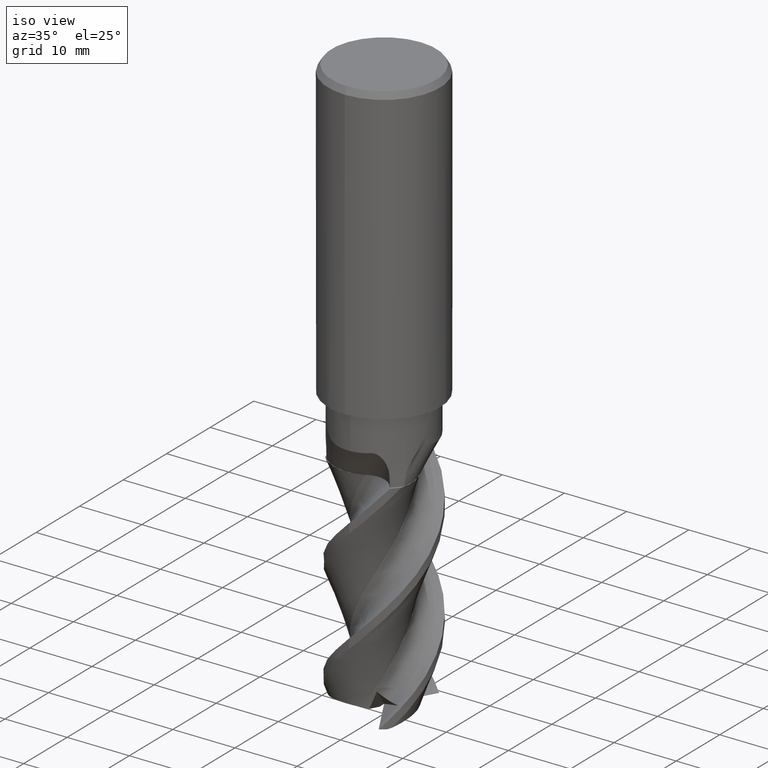
[diagram: clean part render]
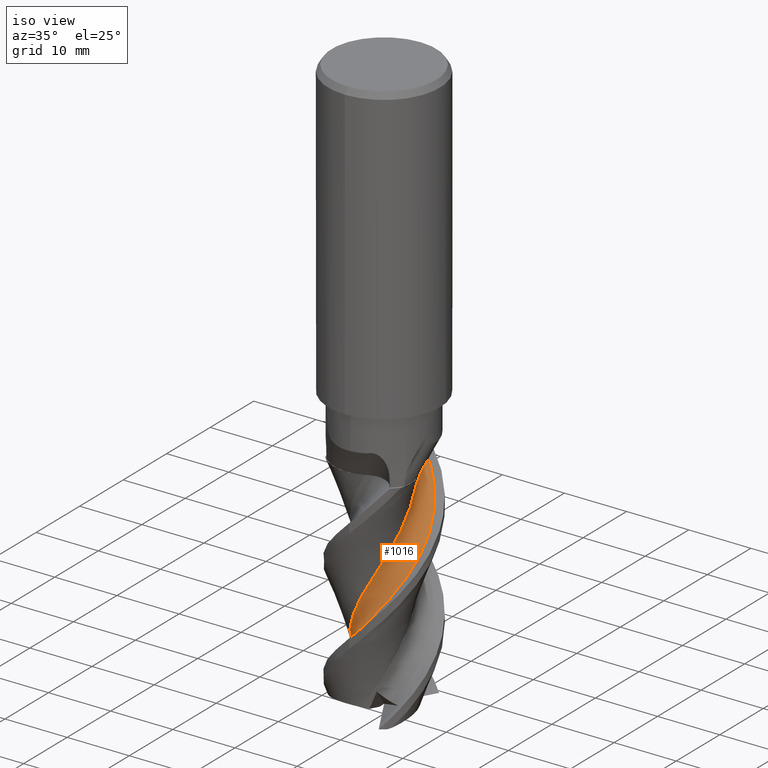
[diagram: same view with one face highlighted and labeled with its STEP entity id]
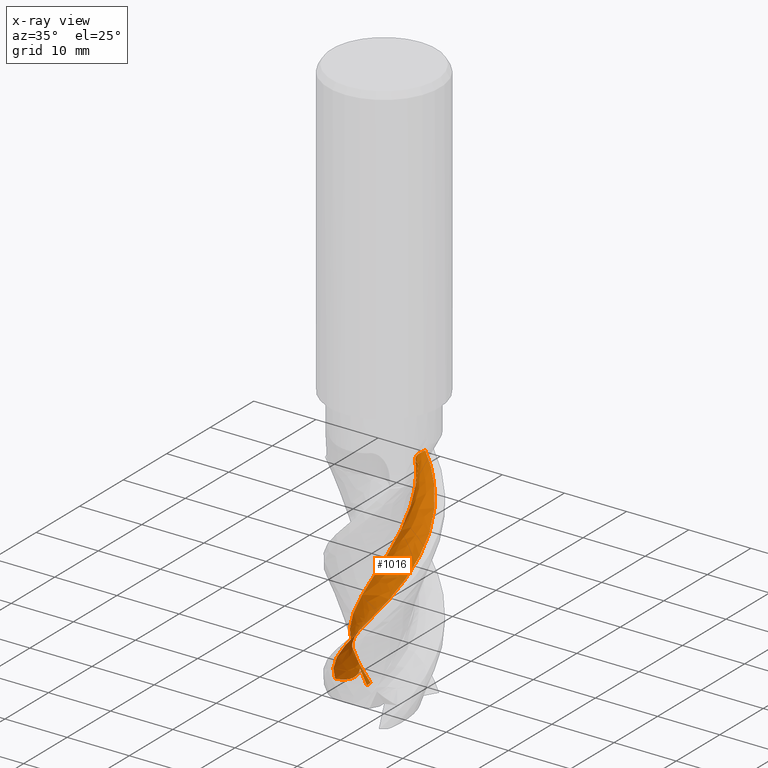
[diagram: x-ray of the same camera — body ghosted, the highlighted face saturated]
A machine part, iso view. The second image highlights one B-rep face of the part: STEP entity #1016.
The next image is the same camera in x-ray: the body ghosted, the highlighted face saturated — about 0% of this face is hidden behind the body in this view.
In plain terms, the highlighted face is a freeform B-spline surface patch.
Its self-contained STEP definition (entity closure, byte-faithful):
#510=VERTEX_POINT('',#1444);
#662=VERTEX_POINT('',#1611);
#722=EDGE_CURVE('',#1364,#1028,#1680,.T.);
#864=EDGE_CURVE('',#662,#510,#1833,.T.);
#946=EDGE_CURVE('',#662,#1020,#1920,.T.);
#1016=ADVANCED_FACE('',(#1997),#1998,.T.);
#1018=EDGE_CURVE('',#1326,#510,#2000,.T.);
#1020=VERTEX_POINT('',#2002);
#1028=VERTEX_POINT('',#2011);
#1192=EDGE_CURVE('',#1028,#1326,#2183,.T.);
#1272=EDGE_CURVE('',#1020,#1364,#2272,.T.);
#1326=VERTEX_POINT('',#2334);
#1364=VERTEX_POINT('',#2376);
#1444=CARTESIAN_POINT('',(2.22355793593202,6.3147285805352,-58.0));
#1611=CARTESIAN_POINT('',(-6.28989335327701,-2.29339340197908,-90.1830418899599));
#1680=B_SPLINE_CURVE_WITH_KNOTS('',3,(#5207,#5208,#5209,#5210,#5211,#5212,#5213,#5214),.UNSPECIFIED.,.F.,.F.,(4,2,2,4),(0.0,1.60264112945097,2.56419841396206,3.494811114331),.UNSPECIFIED.);
#1833=B_SPLINE_CURVE_WITH_KNOTS('',3,(#5941,#5942,#5943,#5944,#5945,#5946,#5947,#5948,#5949,#5950,#5951,#5952,#5953,#5954,#5955,#5956,#5957,#5958,#5959,#5960,#5961,#5962,#5963,#5964,#5965,#5966,#5967,#5968,#5969,#5970,#5971,#5972,#5973,#5974,#5975,#5976,#5977,#5978,#5979,#5980,#5981,#5982,#5983,#5984,#5985,#5986,#5987,#5988,#5989,#5990,#5991,#5992,#5993,#5994,#5995,#5996),.UNSPECIFIED.,.F.,.F.,(4,1,1,2,1,2,1,2,1,1,1,2,1,2,1,2,1,2,1,2,1,2,1,2,1,2,1,2,1,2,1,2,1,2,1,2,1,4),(0.0,1.05208028823285,1.57812043234927,2.10416057646569,3.15624086469854,4.20832115293138,6.31248172939707,8.41664230586276,9.46872259409561,10.5208028823285,11.5728831705613,12.6249634587941,14.7291240352598,16.8332846117255,18.9374451881912,21.0416057646569,23.1457663411226,25.2499269175883,27.354087494054,29.4582480705197,31.5624086469854,33.666569223451,35.7707297999167,37.8748903763824,39.9790509528481,42.0832115293138,44.1873721057795,46.2915326822452,48.3956932587109,50.4998538351766,52.6040144116423,54.7081749881079,56.8123355645736,58.9164961410393,61.020656717505,63.1248172939707,65.2289778704364,67.3331384469021),.UNSPECIFIED.);
#1920=B_SPLINE_CURVE_WITH_KNOTS('',3,(#6532,#6533,#6534,#6535,#6536,#6537,#6538,#6539,#6540,#6541,#6542,#6543),.UNSPECIFIED.,.F.,.F.,(4,2,2,2,2,4),(0.0,1.63922608220236,2.74618993997065,3.5703793079358,4.33404168362256,5.10745570666336),.UNSPECIFIED.);
#1997=FACE_OUTER_BOUND('',#6774,.T.);
#1998=B_SPLINE_SURFACE_WITH_KNOTS('',3,3,((#6775,#6776,#6777,#6778,#6779,#6780,#6781,#6782,#6783,#6784,#6785,#6786,#6787,#6788,#6789,#6790,#6791,#6792,#6793,#6794,#6795,#6796,#6797,#6798,#6799,#6800,#6801,#6802,#6803,#6804,#6805,#6806,#6807,#6808,#6809,#6810,#6811,#6812,#6813,#6814,#6815,#6816,#6817,#6818,#6819,#6820,#6821,#6822,#6823,#6824,#6825,#6826,#6827,#6828,#6829,#6830),(#6831,#6832,#6833,#6834,#6835,#6836,#6837,#6838,#6839,#6840,#6841,#6842,#6843,#6844,#6845,#6846,#6847,#6848,#6849,#6850,#6851,#6852,#6853,#6854,#6855,#6856,#6857,#6858,#6859,#6860,#6861,#6862,#6863,#6864,#6865,#6866,#6867,#6868,#6869,#6870,#6871,#6872,#6873,#6874,#6875,#6876,#6877,#6878,#6879,#6880,#6881,#6882,#6883,#6884,#6885,#6886),(#6887,#6888,#6889,#6890,#6891,#6892,#6893,#6894,#6895,#6896,#6897,#6898,#6899,#6900,#6901,#6902,#6903,#6904,#6905,#6906,#6907,#6908,#6909,#6910,#6911,#6912,#6913,#6914,#6915,#6916,#6917,#6918,#6919,#6920,#6921,#6922,#6923,#6924,#6925,#6926,#6927,#6928,#6929,#6930,#6931,#6932,#6933,#6934,#6935,#6936,#6937,#6938,#6939,#6940,#6941,#6942),(#6943,#6944,#6945,#6946,#6947,#6948,#6949,#6950,#6951,#6952,#6953,#6954,#6955,#6956,#6957,#6958,#6959,#6960,#6961,#6962,#6963,#6964,#6965,#6966,#6967,#6968,#6969,#6970,#6971,#6972,#6973,#6974,#6975,#6976,#6977,#6978,#6979,#6980,#6981,#6982,#6983,#6984,#6985,#6986,#6987,#6988,#6989,#6990,#6991,#6992,#6993,#6994,#6995,#6996,#6997,#6998),(#6999,#7000,#7001,#7002,#7003,#7004,#7005,#7006,#7007,#7008,#7009,#7010,#7011,#7012,#7013,#7014,#7015,#7016,#7017,#7018,#7019,#7020,#7021,#7022,#7023,#7024,#7025,#7026,#7027,#7028,#7029,#7030,#7031,#7032,#7033,#7034,#7035,#7036,#7037,#7038,#7039,#7040,#7041,#7042,#7043,#7044,#7045,#7046,#7047,#7048,#7049,#7050,#7051,#7052,#7053,#7054),(#7055,#7056,#7057,#7058,#7059,#7060,#7061,#7062,#7063,#7064,#7065,#7066,#7067,#7068,#7069,#7070,#7071,#7072,#7073,#7074,#7075,#7076,#7077,#7078,#7079,#7080,#7081,#7082,#7083,#7084,#7085,#7086,#7087,#7088,#7089,#7090,#7091,#7092,#7093,#7094,#7095,#7096,#7097,#7098,#7099,#7100,#7101,#7102,#7103,#7104,#7105,#7106,#7107,#7108,#7109,#7110),(#7111,#7112,#7113,#7114,#7115,#7116,#7117,#7118,#7119,#7120,#7121,#7122,#7123,#7124,#7125,#7126,#7127,#7128,#7129,#7130,#7131,#7132,#7133,#7134,#7135,#7136,#7137,#7138,#7139,#7140,#7141,#7142,#7143,#7144,#7145,#7146,#7147,#7148,#7149,#7150,#7151,#7152,#7153,#7154,#7155,#7156,#7157,#7158,#7159,#7160,#7161,#7162,#7163,#7164,#7165,#7166)),.UNSPECIFIED.,.F.,.F.,.F.,(4,1,1,1,4),(4,1,1,2,1,2,1,2,1,1,1,2,1,2,1,2,1,2,1,2,1,2,1,2,1,2,1,2,1,2,1,2,1,2,1,2,1,4),(5.45451885754599E-016,0.362155819775226,0.724311639550452,1.08646745932568,1.4486232791009),(0.0,1.05208028823285,1.57812043234927,2.10416057646569,3.15624086469854,4.20832115293138,6.31248172939707,8.41664230586276,9.46872259409561,10.5208028823285,11.5728831705613,12.6249634587941,14.7291240352598,16.8332846117255,18.9374451881912,21.0416057646569,23.1457663411226,25.2499269175883,27.354087494054,29.4582480705197,31.5624086469854,33.666569223451,35.7707297999167,37.8748903763824,39.9790509528481,42.0832115293138,44.1873721057795,46.2915326822452,48.3956932587109,50.4998538351766,52.6040144116423,54.7081749881079,56.8123355645736,58.9164961410393,61.020656717505,63.1248172939707,65.2289778704364,67.3331384469021),.UNSPECIFIED.);
#2000=B_SPLINE_CURVE_WITH_KNOTS('',3,(#7169,#7170,#7171,#7172,#7173,#7174,#7175,#7176,#7177,#7178),.UNSPECIFIED.,.F.,.F.,(4,2,2,2,4),(0.0,1.27130456905452,2.54253589378067,3.63435170321796,4.7261446115936),.UNSPECIFIED.);
#2002=CARTESIAN_POINT('',(-4.27892094822931,0.573476657413636,-89.2613661835514));
#2011=CARTESIAN_POINT('',(-3.84685358908376,2.37287257547331,-91.8859076220456));
#2183=B_SPLINE_CURVE_WITH_KNOTS('',3,(#8182,#8183,#8184,#8185,#8186,#8187,#8188,#8189,#8190,#8191,#8192,#8193,#8194,#8195,#8196,#8197,#8198,#8199,#8200,#8201,#8202,#8203,#8204,#8205,#8206,#8207,#8208,#8209,#8210,#8211,#8212,#8213,#8214,#8215,#8216,#8217,#8218,#8219,#8220,#8221,#8222,#8223,#8224,#8225,#8226,#8227,#8228,#8229,#8230,#8231,#8232,#8233,#8234),.UNSPECIFIED.,.F.,.F.,(4,1,2,1,2,1,2,1,2,1,2,1,2,1,2,1,2,1,2,1,2,1,2,1,2,1,2,1,2,1,2,1,2,1,4),(0.0,1.05208028823285,2.10416057646569,3.15624086469854,4.20832115293138,6.31248172939707,8.41664230586276,10.5208028823285,12.6249634587941,14.7291240352598,16.8332846117255,18.9374451881912,21.0416057646569,23.1457663411226,25.2499269175883,27.354087494054,29.4582480705197,31.5624086469854,33.666569223451,35.7707297999167,37.8748903763824,39.9790509528481,42.0832115293138,44.1873721057795,46.2915326822452,48.3956932587109,50.4998538351766,52.6040144116423,54.7081749881079,56.8123355645736,58.9164961410393,61.020656717505,63.1248172939707,65.2289778704364,67.3331384469021),.UNSPECIFIED.);
#2272=B_SPLINE_CURVE_WITH_KNOTS('',3,(#9012,#9013,#9014,#9015,#9016,#9017,#9018,#9019,#9020,#9021,#9022,#9023,#9024,#9025),.UNSPECIFIED.,.F.,.F.,(4,2,2,2,2,2,4),(0.0,1.41616585007749,1.84085643942317,2.2535821801268,6.28710631837659,8.06713960891756,10.0252485545856),.UNSPECIFIED.);
#2334=CARTESIAN_POINT('',(3.87236873520608,2.330720127982,-58.0));
#2376=CARTESIAN_POINT('',(-3.91018268444745,1.61313432059085,-91.9915144910209));
#5207=CARTESIAN_POINT('',(-5.28938370358119,-0.374505337660032,-91.9263345308506));
#5208=CARTESIAN_POINT('',(-4.86987631664627,-0.0502761781570873,-91.991704953761));
#5209=CARTESIAN_POINT('',(-4.52157195879466,0.332685917688254,-92.0274979035513));
#5210=CARTESIAN_POINT('',(-4.12055129785371,0.998883512179404,-92.0321102304524));
#5211=CARTESIAN_POINT('',(-4.00153975507122,1.26716466064107,-92.0220138210744));
#5212=CARTESIAN_POINT('',(-3.85448528541987,1.81880992946687,-91.9737730821675));
#5213=CARTESIAN_POINT('',(-3.82490114446282,2.0969947267938,-91.9369038655388));
#5214=CARTESIAN_POINT('',(-3.84685358919206,2.37287257545753,-91.8859076220178));
#5941=CARTESIAN_POINT('',(2.4086586423331,6.24492391113176,-109.0));
#5942=CARTESIAN_POINT('',(2.37630737481632,6.25952841587887,-108.651072579115));
#5943=CARTESIAN_POINT('',(2.2143571545779,6.32693680486268,-108.127524460477));
#5944=CARTESIAN_POINT('',(1.74902233982469,6.46933910757108,-107.429428629351));
#5945=CARTESIAN_POINT('',(1.42924904301388,6.54418410614278,-107.080456256324));
#5946=CARTESIAN_POINT('',(0.884930414730658,6.64558014179787,-106.55713254818));
#5947=CARTESIAN_POINT('',(0.203440921889663,6.71285186098475,-105.859425673904));
#5948=CARTESIAN_POINT('',(-0.390337190983949,6.68867529174116,-105.161585973117));
#5949=CARTESIAN_POINT('',(-1.22998172512852,6.60519643773367,-104.114596902642));
#5950=CARTESIAN_POINT('',(-2.32084826201455,6.35638932693125,-102.71862421018));
#5951=CARTESIAN_POINT('',(-3.3599079926254,5.82266405836272,-101.322690176022));
#5952=CARTESIAN_POINT('',(-4.10352476669626,5.29832861737617,-100.275884146031));
#5953=CARTESIAN_POINT('',(-4.56471525206936,4.92328591150941,-99.5780260148535));
#5954=CARTESIAN_POINT('',(-5.16199289166042,4.29233478478124,-98.5312100898291));
#5955=CARTESIAN_POINT('',(-5.67175698234674,3.59249222109533,-97.4843401699208));
#5956=CARTESIAN_POINT('',(-5.95387425503102,3.07600018377251,-96.786401149683));
#5957=CARTESIAN_POINT('',(-6.33000305867484,2.26017897694653,-95.7395013984771));
#5958=CARTESIAN_POINT('',(-6.67006314879363,1.14798568027452,-94.3436952715741));
#5959=CARTESIAN_POINT('',(-6.72161955852093,-0.0140925914243089,-92.9478102200316));
#5960=CARTESIAN_POINT('',(-6.61210034900328,-1.20737861078798,-91.5519840884215));
#5961=CARTESIAN_POINT('',(-6.35080123590704,-2.33930319462178,-90.1562051408592));
#5962=CARTESIAN_POINT('',(-5.81536270260323,-3.3708569696423,-88.7603200213329));
#5963=CARTESIAN_POINT('',(-5.12367957621595,-4.35039948485345,-87.3644844988753));
#5964=CARTESIAN_POINT('',(-4.33092329359528,-5.20087660904246,-85.9687002621039));
#5965=CARTESIAN_POINT('',(-3.35122257941284,-5.8266702959898,-84.5728156846214));
#5966=CARTESIAN_POINT('',(-2.26278852085276,-6.329111718129,-83.1769815968081));
#5967=CARTESIAN_POINT('',(-1.15133961765206,-6.66934388295232,-81.7811979629785));
#5968=CARTESIAN_POINT('',(0.00990555342202759,-6.72166333691179,-80.3853131393637));
#5969=CARTESIAN_POINT('',(1.20379402754586,-6.61277538209198,-78.9894788521544));
#5970=CARTESIAN_POINT('',(2.33653353751073,-6.35188115442965,-77.5936951817152));
#5971=CARTESIAN_POINT('',(3.3684476385012,-5.81673492876913,-76.1978105539307));
#5972=CARTESIAN_POINT('',(4.34803255526738,-5.12567186282775,-74.8019764943249));
#5973=CARTESIAN_POINT('',(5.19869206473834,-4.33351973751684,-73.4061928355971));
#5974=CARTESIAN_POINT('',(5.82498136363177,-3.35417104334928,-72.0103080222112));
#5975=CARTESIAN_POINT('',(6.32800762067599,-2.26588690513131,-70.6144738481807));
#5976=CARTESIAN_POINT('',(6.66879683645557,-1.15452630225929,-69.2186902821856));
#5977=CARTESIAN_POINT('',(6.72166587726088,0.00669996322253708,-67.8228055229384));
#5978=CARTESIAN_POINT('',(6.61335151198061,1.20062095856321,-66.4269711661075));
#5979=CARTESIAN_POINT('',(6.35300608376915,2.33346752117525,-65.0311874305366));
#5980=CARTESIAN_POINT('',(5.81837018094502,3.36562088546095,-63.6353027628009));
#5981=CARTESIAN_POINT('',(5.12779900239241,4.34552195790485,-62.239468670901));
#5982=CARTESIAN_POINT('',(4.33605551561435,5.19658425768415,-60.8436850347863));
#5983=CARTESIAN_POINT('',(3.35694909800252,5.82338306365733,-59.447800546078));
#5984=CARTESIAN_POINT('',(2.26884243338146,6.32695173107937,-58.0519668945337));
#5985=CARTESIAN_POINT('',(1.15770209136328,6.66823173059546,-56.6561831843413));
#5986=CARTESIAN_POINT('',(-0.00338251972054238,6.72166969569153,-55.2602966558324));
#5987=CARTESIAN_POINT('',(-1.19735486228095,6.61394313652034,-53.864459898575));
#5988=CARTESIAN_POINT('',(-2.33055804227824,6.35409230993846,-52.4686773391297));
#5989=CARTESIAN_POINT('',(-3.36271535436443,5.82000794471283,-51.0727995826382));
#5990=CARTESIAN_POINT('',(-4.34224667014264,5.13052183789152,-49.6769732124108));
#5991=CARTESIAN_POINT('',(-5.19350612239861,4.33987959228607,-48.2811832277958));
#5992=CARTESIAN_POINT('',(-5.82273853085125,3.35850168140298,-46.885279083924));
#5993=CARTESIAN_POINT('',(-6.32865750359107,2.26485067113282,-45.4894307030924));
#5994=CARTESIAN_POINT('',(-6.66828527967283,1.15262053823479,-44.0936746501432));
#5995=CARTESIAN_POINT('',(-6.72077443906165,0.00893556010537155,-42.6978388415216));
#5996=CARTESIAN_POINT('',(-6.67016703667541,-0.575295329206984,-41.9999324884485));
#6532=CARTESIAN_POINT('',(-6.28989335327701,-2.29339340197907,-90.1830418899599));
#6533=CARTESIAN_POINT('',(-5.83077271909361,-2.02063023202306,-90.2986747457366));
#6534=CARTESIAN_POINT('',(-5.41314953049167,-1.7091689137424,-90.3497486678629));
#6535=CARTESIAN_POINT('',(-4.84224416734199,-1.15255541922655,-90.30782476927));
#6536=CARTESIAN_POINT('',(-4.63373800592171,-0.905455005289958,-90.2550926827754));
#6537=CARTESIAN_POINT('',(-4.36172958721066,-0.451244598035822,-90.0736870455262));
#6538=CARTESIAN_POINT('',(-4.27756577672142,-0.254447415101886,-89.9695090787141));
#6539=CARTESIAN_POINT('',(-4.1972066869137,0.117751994859135,-89.7126346628192));
#6540=CARTESIAN_POINT('',(-4.19697452335599,0.285003757750842,-89.5699644360377));
#6541=CARTESIAN_POINT('',(-4.27066821004876,0.589109111333743,-89.2542808287538));
#6542=CARTESIAN_POINT('',(-4.34410347611005,0.71990406213134,-89.0868144990053));
#6543=CARTESIAN_POINT('',(-4.44462105500136,0.827846148347738,-88.9183036847115));
#6774=EDGE_LOOP('',(#11127,#11128,#11129,#11130,#11131,#11132));
#6775=CARTESIAN_POINT('',(3.91210414332338,2.20410300598852,-109.0));
#6776=CARTESIAN_POINT('',(3.9176808329129,2.23281921013965,-108.651198226776));
#6777=CARTESIAN_POINT('',(3.87869743380195,2.34542804912071,-108.126943824335));
#6778=CARTESIAN_POINT('',(3.70336262431504,2.62299235896373,-107.427774118038));
#6779=CARTESIAN_POINT('',(3.56683813372603,2.79814675815055,-107.07874195647));
#6780=CARTESIAN_POINT('',(3.32045941086917,3.08036640488488,-106.556162769298));
#6781=CARTESIAN_POINT('',(2.98951188844652,3.40385662853436,-105.859781416877));
#6782=CARTESIAN_POINT('',(2.66986091639698,3.64616264870399,-105.162408191925));
#6783=CARTESIAN_POINT('',(2.19839949390143,3.96565387397065,-104.114687546498));
#6784=CARTESIAN_POINT('',(1.52561703055323,4.30873989430494,-102.717842366888));
#6785=CARTESIAN_POINT('',(0.75497251483309,4.47816473405965,-101.321295254061));
#6786=CARTESIAN_POINT('',(0.142002897622095,4.52250987133084,-100.274931304431));
#6787=CARTESIAN_POINT('',(-0.259361980657867,4.52488520407698,-99.5774451189426));
#6788=CARTESIAN_POINT('',(-0.84158568857154,4.45388962343805,-98.5310037152148));
#6789=CARTESIAN_POINT('',(-1.40804525389292,4.3096381330646,-97.4841678729036));
#6790=CARTESIAN_POINT('',(-1.77697721913241,4.16187265125512,-96.7860899327076));
#6791=CARTESIAN_POINT('',(-2.32303877538285,3.89748764674831,-95.73903749983));
#6792=CARTESIAN_POINT('',(-2.97862279212829,3.46573205689747,-94.3434071803266));
#6793=CARTESIAN_POINT('',(-3.50596987851977,2.88353857788947,-92.9472039972634));
#6794=CARTESIAN_POINT('',(-3.96041344157847,2.21390530625817,-91.5514289379836));
#6795=CARTESIAN_POINT('',(-4.31195021400619,1.51305600707443,-90.1559966369849));
#6796=CARTESIAN_POINT('',(-4.47787607272301,0.745936631202697,-88.7597917483929));
#6797=CARTESIAN_POINT('',(-4.53685712873086,-0.0617566729936594,-87.363947732843));
#6798=CARTESIAN_POINT('',(-4.49091261508209,-0.845138746400566,-85.9684768730404));
#6799=CARTESIAN_POINT('',(-4.25098189343525,-1.59261560003021,-84.5722762515982));
#6800=CARTESIAN_POINT('',(-3.89840602648561,-2.32143170181862,-83.1764428455985));
#6801=CARTESIAN_POINT('',(-3.46715128485147,-2.97679277802163,-81.7809763951651));
#6802=CARTESIAN_POINT('',(-2.88577452983669,-3.50423717203244,-80.3847738964392));
#6803=CARTESIAN_POINT('',(-2.21608241821847,-3.95924997062414,-78.9889389922037));
#6804=CARTESIAN_POINT('',(-1.51495870489823,-4.31130778521567,-77.5934722673173));
#6805=CARTESIAN_POINT('',(-0.747776326225385,-4.4775232165998,-76.1972712168149));
#6806=CARTESIAN_POINT('',(0.0596701076636255,-4.53686544139955,-74.8014379846948));
#6807=CARTESIAN_POINT('',(0.842887043564287,-4.49133270283545,-73.4059713545652));
#6808=CARTESIAN_POINT('',(1.59047177519227,-4.25180054549916,-72.0097689449949));
#6809=CARTESIAN_POINT('',(2.31952621178001,-3.89954681811945,-70.6139348629626));
#6810=CARTESIAN_POINT('',(2.97513593560657,-3.46857312470342,-69.2184688774741));
#6811=CARTESIAN_POINT('',(3.50285762538284,-2.88744298768017,-67.8222668716184));
#6812=CARTESIAN_POINT('',(3.95818479325357,-2.21798071783656,-66.4264315174587));
#6813=CARTESIAN_POINT('',(4.31057509216532,-1.51703831923412,-65.03096440546));
#6814=CARTESIAN_POINT('',(4.47716036409898,-0.749951777382806,-63.6347630362591));
#6815=CARTESIAN_POINT('',(4.53689629328112,0.0574485150182931,-62.2389293956788));
#6816=CARTESIAN_POINT('',(4.49174795300425,0.840699259137214,-60.843462609704));
#6817=CARTESIAN_POINT('',(4.25255662480049,1.58844357594952,-59.4472626492345));
#6818=CARTESIAN_POINT('',(3.90062477150182,2.31770374096086,-58.05143300684));
#6819=CARTESIAN_POINT('',(3.46998299420146,2.97347621369663,-56.6559671654424));
#6820=CARTESIAN_POINT('',(2.8891765616734,3.50143836854669,-55.2597519755032));
#6821=CARTESIAN_POINT('',(2.2199367162323,3.95709089525956,-53.8638967848084));
#6822=CARTESIAN_POINT('',(1.51900884730316,4.30987046626463,-52.4684337913786));
#6823=CARTESIAN_POINT('',(0.752168823704514,4.476761435775,-51.0722837184851));
#6824=CARTESIAN_POINT('',(-0.0545606455449004,4.53698212021749,-49.6765147938335));
#6825=CARTESIAN_POINT('',(-0.837448802517368,4.49256176686287,-48.2810179044601));
#6826=CARTESIAN_POINT('',(-1.58741013565347,4.25300677667559,-46.8846706212026));
#6827=CARTESIAN_POINT('',(-2.32011696065469,3.89877413707266,-45.4887015283125));
#6828=CARTESIAN_POINT('',(-2.97538913257701,3.4667979730445,-44.0933765894603));
#6829=CARTESIAN_POINT('',(-3.49613215070301,2.89558473657637,-42.697417636209));
#6830=CARTESIAN_POINT('',(-3.72087495183469,2.56958272578878,-41.9995089409185));
#6831=CARTESIAN_POINT('',(3.56564151834793,2.38905348954776,-109.0));
#6832=CARTESIAN_POINT('',(3.56948222991669,2.41451772310721,-108.651180032716));
#6833=CARTESIAN_POINT('',(3.52483730902663,2.51662091147232,-108.127027900467));
#6834=CARTESIAN_POINT('',(3.33787458288133,2.76746029541946,-107.428013691627));
#6835=CARTESIAN_POINT('',(3.19490188205433,2.92471076476308,-107.078990188611));
#6836=CARTESIAN_POINT('',(2.93910941727702,3.1766109916506,-106.55630319213));
#6837=CARTESIAN_POINT('',(2.59970981527968,3.46146299355283,-105.859729906188));
#6838=CARTESIAN_POINT('',(2.27743983785128,3.66904255460756,-105.162289133762));
#6839=CARTESIAN_POINT('',(1.80518006831044,3.9388184154397,-104.114674422282));
#6840=CARTESIAN_POINT('',(1.13959730961685,4.21628761434979,-102.717955587997));
#6841=CARTESIAN_POINT('',(0.393078962160804,4.32153832735063,-101.321497218578));
#6842=CARTESIAN_POINT('',(-0.194481081964385,4.31919889703355,-100.275069286694));
#6843=CARTESIAN_POINT('',(-0.577148281925571,4.29221337204429,-99.5775292241527));
#6844=CARTESIAN_POINT('',(-1.12660246128019,4.182105222046,-98.5310336008573));
#6845=CARTESIAN_POINT('',(-1.65566067604847,4.00336943789784,-97.4841928253455));
#6846=CARTESIAN_POINT('',(-1.99641473536887,3.83568670192393,-96.7861349966753));
#6847=CARTESIAN_POINT('',(-2.49759989111006,3.54393541596587,-95.7391046733214));
#6848=CARTESIAN_POINT('',(-3.09058830056535,3.08479946044433,-94.3434488945219));
#6849=CARTESIAN_POINT('',(-3.55047425548364,2.49175908489419,-92.9472917808943));
#6850=CARTESIAN_POINT('',(-3.93483489918229,1.82043712367649,-91.5515093216923));
#6851=CARTESIAN_POINT('',(-4.21854191874007,1.12716519670771,-90.1560268229526));
#6852=CARTESIAN_POINT('',(-4.32065576175457,0.384335791397181,-88.7598682558254));
#6853=CARTESIAN_POINT('',(-4.31804927708582,-0.389775238826106,-87.364025443515));
#6854=CARTESIAN_POINT('',(-4.21710261406362,-1.13266049748519,-85.968509236156));
#6855=CARTESIAN_POINT('',(-3.93404405190836,-1.82718582401311,-84.5723543424475));
#6856=CARTESIAN_POINT('',(-3.54492597715964,-2.4961437212151,-83.1765208762858));
#6857=CARTESIAN_POINT('',(-3.08628364989333,-3.08895084347339,-81.7810084613486));
#6858=CARTESIAN_POINT('',(-2.49402092779958,-3.54898050769978,-80.384851993637));
#6859=CARTESIAN_POINT('',(-1.8225993009458,-3.93388181819198,-78.9890171495635));
#6860=CARTESIAN_POINT('',(-1.12902309120101,-4.21806932844703,-77.5935045225053));
#6861=CARTESIAN_POINT('',(-0.386110228474422,-4.32045497344199,-76.1973493734782));
#6862=CARTESIAN_POINT('',(0.38778928589204,-4.31820988150816,-74.8015159007103));
#6863=CARTESIAN_POINT('',(1.13054473362089,-4.21766712943738,-73.4060034887334));
#6864=CARTESIAN_POINT('',(1.82520158344523,-3.93498055839815,-72.0098469367835));
#6865=CARTESIAN_POINT('',(2.49441105815991,-3.54615196068475,-70.6140129750751));
#6866=CARTESIAN_POINT('',(3.08747624041381,-3.08775892015546,-69.2185008674642));
#6867=CARTESIAN_POINT('',(3.54778802763309,-2.49571083493868,-67.8223449407755));
#6868=CARTESIAN_POINT('',(3.93300556559248,-1.82448551864895,-66.4265095866159));
#6869=CARTESIAN_POINT('',(4.21752291465115,-1.13105788817523,-65.0309967219425));
#6870=CARTESIAN_POINT('',(4.32026774243521,-0.388209507185105,-63.6348412163832));
#6871=CARTESIAN_POINT('',(4.31840121221888,0.385674487371414,-62.239007455479));
#6872=CARTESIAN_POINT('',(4.21822222656453,1.12849039887539,-60.8434948555085));
#6873=CARTESIAN_POINT('',(3.93584863650484,1.82332475082499,-59.4473404873073));
#6874=CARTESIAN_POINT('',(3.54731175437771,2.49275421368813,-58.051510363617));
#6875=CARTESIAN_POINT('',(3.08922319736053,3.08599778185736,-56.6559984147567));
#6876=CARTESIAN_POINT('',(2.49746659073764,3.54656146125734,-55.2598308564753));
#6877=CARTESIAN_POINT('',(1.82642915969012,3.93210573450718,-53.863978312907));
#6878=CARTESIAN_POINT('',(1.13298439050311,4.21699713861203,-52.4684690666555));
#6879=CARTESIAN_POINT('',(0.390350608486466,4.32004933899824,-51.0723584079407));
#6880=CARTESIAN_POINT('',(-0.382919354789024,4.31869032297362,-49.6765811809373));
#6881=CARTESIAN_POINT('',(-1.1254333854225,4.21923102841596,-48.2810418012695));
#6882=CARTESIAN_POINT('',(-1.82238437581345,3.93635052824946,-46.8847588031288));
#6883=CARTESIAN_POINT('',(-2.49498993867507,3.54535774187852,-45.4888070368858));
#6884=CARTESIAN_POINT('',(-3.08766937150429,3.08602100860495,-44.093419797805));
#6885=CARTESIAN_POINT('',(-3.54191288948272,2.50401174335066,-42.6974786051065));
#6886=CARTESIAN_POINT('',(-3.73228378979692,2.17701060944793,-41.9995702707877));
#6887=CARTESIAN_POINT('',(2.94051396343669,2.8857064306092,-109.0));
#6888=CARTESIAN_POINT('',(2.93969299301079,2.90530307552372,-108.651144855977));
#6889=CARTESIAN_POINT('',(2.87988159429477,2.98847029183923,-108.127190459589));
#6890=CARTESIAN_POINT('',(2.65988504153848,3.19012382804618,-107.428476899705));
#6891=CARTESIAN_POINT('',(2.49746489422036,3.31393191642365,-107.079470134288));
#6892=CARTESIAN_POINT('',(2.21175066377983,3.50864793662488,-106.556574699377));
#6893=CARTESIAN_POINT('',(1.8413075913764,3.71932864198526,-105.859630308588));
#6894=CARTESIAN_POINT('',(1.50109026596119,3.85842436095317,-105.162058941371));
#6895=CARTESIAN_POINT('',(1.00903786090322,4.0290766625366,-104.114649042399));
#6896=CARTESIAN_POINT('',(0.333836126775147,4.17269688129261,-102.718174463061));
#6897=CARTESIAN_POINT('',(-0.387925351185719,4.14078839589311,-101.321887782337));
#6898=CARTESIAN_POINT('',(-0.941760800601317,4.03579378138368,-100.275336034235));
#6899=CARTESIAN_POINT('',(-1.29778455411987,3.94325193029681,-99.5776918684476));
#6900=CARTESIAN_POINT('',(-1.79602502414857,3.74293655803058,-98.5310913751609));
#6901=CARTESIAN_POINT('',(-2.26291333367261,3.48155342851927,-97.4842410568173));
#6902=CARTESIAN_POINT('',(-2.55460992540073,3.26372888068206,-96.7862221292099));
#6903=CARTESIAN_POINT('',(-2.97607209369881,2.90082820355151,-95.7392345449751));
#6904=CARTESIAN_POINT('',(-3.4539095712458,2.36402936241458,-94.3435295568153));
#6905=CARTESIAN_POINT('',(-3.78286361159194,1.72460716482508,-92.9474614945806));
#6906=CARTESIAN_POINT('',(-4.0276976999523,1.02425755496031,-91.5516647535819));
#6907=CARTESIAN_POINT('',(-4.17299225796047,0.321311879887849,-90.1560852038779));
#6908=CARTESIAN_POINT('',(-4.13861100632726,-0.396300570915144,-88.7600161325152));
#6909=CARTESIAN_POINT('',(-4.00055671145057,-1.12579862446464,-87.3641757420423));
#6910=CARTESIAN_POINT('',(-3.77480019290597,-1.80783367260729,-85.968571759883));
#6911=CARTESIAN_POINT('',(-3.38611832369226,-2.41225699175316,-84.5725053790369));
#6912=CARTESIAN_POINT('',(-2.90201835036021,-2.9748912619785,-83.1766716951533));
#6913=CARTESIAN_POINT('',(-2.36571391617691,-3.4526333847522,-81.7810705110444));
#6914=CARTESIAN_POINT('',(-1.72700826242165,-3.78183825452856,-80.3850029407217));
#6915=CARTESIAN_POINT('',(-1.02646685185994,-4.02717077908237,-78.9891683151224));
#6916=CARTESIAN_POINT('',(-0.323142346512601,-4.1728756866291,-77.5935669593028));
#6917=CARTESIAN_POINT('',(0.394600958918836,-4.13873822561769,-76.1975002904651));
#6918=CARTESIAN_POINT('',(1.12395813945164,-4.00105864539583,-74.8016667446832));
#6919=CARTESIAN_POINT('',(1.80593688279339,-3.77570329159296,-73.4060654072735));
#6920=CARTESIAN_POINT('',(2.41054872537678,-3.38734891131949,-72.0099979584622));
#6921=CARTESIAN_POINT('',(2.97347303057844,-2.90347794899828,-70.6141637747541));
#6922=CARTESIAN_POINT('',(3.45150363954395,-2.36736272131848,-69.2185629602249));
#6923=CARTESIAN_POINT('',(3.78101200990114,-1.72880954966732,-67.8224956294484));
#6924=CARTESIAN_POINT('',(4.02667673179552,-1.02839803688819,-66.4266607857736));
#6925=CARTESIAN_POINT('',(4.1727181650797,-0.325155691065311,-65.0310591294607));
#6926=CARTESIAN_POINT('',(4.13893010067326,0.392589681639308,-63.6349922701677));
#6927=CARTESIAN_POINT('',(4.00160993637677,1.1219982023625,-62.2391584860176));
#6928=CARTESIAN_POINT('',(3.77658688855563,1.80409819735296,-60.8435570646212));
#6929=CARTESIAN_POINT('',(3.38849638171909,2.40893359587611,-59.4474911537434));
#6930=CARTESIAN_POINT('',(2.90486199181465,2.97211742675408,-58.0516597609496));
#6931=CARTESIAN_POINT('',(2.36900217081304,3.45036774244063,-56.6560589384481));
#6932=CARTESIAN_POINT('',(1.73068015643912,3.78016264944069,-55.25998333077));
#6933=CARTESIAN_POINT('',(1.03038802871609,4.02616949735383,-53.8641359838228));
#6934=CARTESIAN_POINT('',(0.327059618893146,4.17256616884524,-52.4685372292844));
#6935=CARTESIAN_POINT('',(-0.390534412960107,4.13910045014979,-51.0725028598502));
#6936=CARTESIAN_POINT('',(-1.11943406052186,4.00235417418623,-49.6767094955444));
#6937=CARTESIAN_POINT('',(-1.80135665430657,3.77805638268278,-48.2810881513402));
#6938=CARTESIAN_POINT('',(-2.40816040623126,3.3891358145629,-46.8849290493799));
#6939=CARTESIAN_POINT('',(-2.97403603611818,2.9026362762388,-45.489011284289));
#6940=CARTESIAN_POINT('',(-3.45156304850941,2.36567732202861,-44.0935031537601));
#6941=CARTESIAN_POINT('',(-3.77677901815273,1.73773994354708,-42.6975966076737));
#6942=CARTESIAN_POINT('',(-3.89878219067881,1.39616051357943,-41.9996888498895));
#6943=CARTESIAN_POINT('',(2.32754756285961,3.91463823774922,-109.0));
#6944=CARTESIAN_POINT('',(2.31706883686409,3.92848144380677,-108.651102547932));
#6945=CARTESIAN_POINT('',(2.22591828489363,3.99314598075029,-108.12738596988));
#6946=CARTESIAN_POINT('',(1.9334417198116,4.14335870764884,-107.42903400358));
#6947=CARTESIAN_POINT('',(1.72596748064887,4.2305899447924,-107.080047370327));
#6948=CARTESIAN_POINT('',(1.36788797250062,4.36099106175924,-106.556901241239));
#6949=CARTESIAN_POINT('',(0.914478062380265,4.48412379659298,-105.85951052408));
#6950=CARTESIAN_POINT('',(0.512687610118429,4.53668974292296,-105.161782084442));
#6951=CARTESIAN_POINT('',(-0.0598103862160713,4.57881196246163,-104.114618522819));
#6952=CARTESIAN_POINT('',(-0.819641633487339,4.53978283648393,-102.718437726117));
#6953=CARTESIAN_POINT('',(-1.57956997369011,4.30231185581731,-101.322357471594));
#6954=CARTESIAN_POINT('',(-2.14065469848043,4.03539050992664,-100.27565687645));
#6955=CARTESIAN_POINT('',(-2.49414431498259,3.83672703213423,-99.5778874666968));
#6956=CARTESIAN_POINT('',(-2.96848494275801,3.48265187768231,-98.5311608673116));
#6957=CARTESIAN_POINT('',(-3.39208636966657,3.07229100702404,-97.4842990720514));
#6958=CARTESIAN_POINT('',(-3.6416144781101,2.75805584895861,-96.7863269189708));
#6959=CARTESIAN_POINT('',(-3.98905577556614,2.25297774825833,-95.7393907533645));
#6960=CARTESIAN_POINT('',(-4.34663624804338,1.54603567735884,-94.3436265678224));
#6961=CARTESIAN_POINT('',(-4.51657119941193,0.771963937505625,-92.9476656045936));
#6962=CARTESIAN_POINT('',(-4.581106454432,-0.0432589283323339,-91.5518516990118));
#6963=CARTESIAN_POINT('',(-4.53737921544676,-0.833336209254243,-90.1561553876269));
#6964=CARTESIAN_POINT('',(-4.29812256719163,-1.58811713950119,-88.7601940419891));
#6965=CARTESIAN_POINT('',(-3.94635364017255,-2.32701859578757,-87.3643564505324));
#6966=CARTESIAN_POINT('',(-3.51317577451994,-2.99002593747738,-85.9686469843066));
#6967=CARTESIAN_POINT('',(-2.92844085294667,-3.52419056726551,-84.5726870357643));
#6968=CARTESIAN_POINT('',(-2.25459419380334,-3.98815512422414,-83.1768530826342));
#6969=CARTESIAN_POINT('',(-1.54819332690188,-4.34576036653638,-81.7811451215318));
#6970=CARTESIAN_POINT('',(-0.774809274994275,-4.51612885729064,-80.3851845242829));
#6971=CARTESIAN_POINT('',(0.0407570035395171,-4.58115232837969,-78.9893500850925));
#6972=CARTESIAN_POINT('',(0.831355018063276,-4.53777663932585,-77.5936419909639));
#6973=CARTESIAN_POINT('',(1.58634818263996,-4.29874965333578,-76.197681961066));
#6974=CARTESIAN_POINT('',(2.32520075028692,-3.94741172262732,-74.8018480046624));
#6975=CARTESIAN_POINT('',(2.98825637559324,-3.51467019402109,-73.4061400166436));
#6976=CARTESIAN_POINT('',(3.52271315655004,-2.93023065231891,-72.0101794761844));
#6977=CARTESIAN_POINT('',(3.98705379797038,-2.25654860624864,-70.6143452602321));
#6978=CARTESIAN_POINT('',(4.34502216530903,-1.55026884899393,-69.2186375000525));
#6979=CARTESIAN_POINT('',(4.51575716502458,-0.776961445275266,-67.8226770260996));
#6980=CARTESIAN_POINT('',(4.58117053788553,0.038559608906102,-66.4268424723147));
#6981=CARTESIAN_POINT('',(4.53817605869782,0.829165073744609,-65.0311342208611));
#6982=CARTESIAN_POINT('',(4.29952008602478,1.5842588918517,-63.6351740392332));
#6983=CARTESIAN_POINT('',(3.94855028143386,2.32326672305063,-62.239340036441));
#6984=CARTESIAN_POINT('',(3.5161292193066,2.98654562364399,-60.843631991813));
#6985=CARTESIAN_POINT('',(2.93190911365944,3.52131665437183,-59.4476722414551));
#6986=CARTESIAN_POINT('',(2.2584073447215,3.98600158831826,-58.0518395625484));
#6987=CARTESIAN_POINT('',(1.55233607155054,4.34427372207286,-56.6561316647269));
#6988=CARTESIAN_POINT('',(0.779193644290762,4.51537588288651,-55.2601667250172));
#6989=CARTESIAN_POINT('',(-0.0362959545159918,4.58118942127272,-53.8643256039616));
#6990=CARTESIAN_POINT('',(-0.827094177474724,4.5385603756431,-52.4686192547143));
#6991=CARTESIAN_POINT('',(-1.582117379485,4.30028140326759,-51.0726765142006));
#6992=CARTESIAN_POINT('',(-2.32072865291628,3.95003445527036,-49.6768638998753));
#6993=CARTESIAN_POINT('',(-2.98400176655883,3.51841264386933,-48.2811437845283));
#6994=CARTESIAN_POINT('',(-3.52070487115601,2.93283032304832,-46.8851339517205));
#6995=CARTESIAN_POINT('',(-3.98761978316238,2.25563196931725,-45.4892567887828));
#6996=CARTESIAN_POINT('',(-4.34486606644624,1.54858601639307,-44.0936035136101));
#6997=CARTESIAN_POINT('',(-4.51349321210063,0.787647631421146,-42.6977384622301));
#6998=CARTESIAN_POINT('',(-4.54733890958257,0.389282847719991,-41.9998314660385));
#6999=CARTESIAN_POINT('',(2.11886409594154,5.09400416780771,-109.0));
#7000=CARTESIAN_POINT('',(2.0973156040802,5.10588862304035,-108.651076188683));
#7001=CARTESIAN_POINT('',(1.97030316069417,5.16435326144951,-108.127507779616));
#7002=CARTESIAN_POINT('',(1.59182251101174,5.29213957760829,-107.429381098057));
#7003=CARTESIAN_POINT('',(1.32925753042349,5.36112784559208,-107.080407007339));
#7004=CARTESIAN_POINT('',(0.880720266524094,5.45702258760712,-106.557104688193));
#7005=CARTESIAN_POINT('',(0.31870752035035,5.52767853722945,-105.859435894305));
#7006=CARTESIAN_POINT('',(-0.171318795732763,5.52114054291811,-105.161609592934));
#7007=CARTESIAN_POINT('',(-0.86458107359069,5.47156841521001,-104.114599508956));
#7008=CARTESIAN_POINT('',(-1.76826263854878,5.2917177347635,-102.718601750264));
#7009=CARTESIAN_POINT('',(-2.63670954982158,4.87553718584379,-101.322650097781));
#7010=CARTESIAN_POINT('',(-3.26194096236023,4.45975861629798,-100.275856774757));
#7011=CARTESIAN_POINT('',(-3.65065762376743,4.16095790700198,-99.5780093269196));
#7012=CARTESIAN_POINT('',(-4.15712251272614,3.65462732412347,-98.5312041585253));
#7013=CARTESIAN_POINT('',(-4.59302426540324,3.08961448672572,-97.4843352205111));
#7014=CARTESIAN_POINT('',(-4.83727503413427,2.67028163799524,-96.7863922054794));
#7015=CARTESIAN_POINT('',(-5.16586661072175,2.00602240384963,-95.7394880783888));
#7016=CARTESIAN_POINT('',(-5.47126746786449,1.09736646400094,-94.3436869811313));
#7017=CARTESIAN_POINT('',(-5.5401997724237,0.141039995824907,-92.9477928254858));
#7018=CARTESIAN_POINT('',(-5.47682633809347,-0.845482776628,-91.5519681186884));
#7019=CARTESIAN_POINT('',(-5.28720476856169,-1.78400784695035,-90.1561991542449));
#7020=CARTESIAN_POINT('',(-4.86952736232674,-2.64613025873644,-88.7603048594515));
#7021=CARTESIAN_POINT('',(-4.32123505902259,-3.46954029715952,-87.3644690639945));
#7022=CARTESIAN_POINT('',(-3.68734634922563,-4.18823933608992,-85.9686938508018));
#7023=CARTESIAN_POINT('',(-2.89438147564552,-4.72615955115498,-84.5728001895547));
#7024=CARTESIAN_POINT('',(-2.00813676349689,-5.1650769354093,-83.1769661174694));
#7025=CARTESIAN_POINT('',(-1.10010834178663,-5.47059831923374,-81.7811915988202));
#7026=CARTESIAN_POINT('',(-0.144507330703535,-5.54014525765965,-80.385297647542));
#7027=CARTESIAN_POINT('',(0.842504285250942,-5.47730417805206,-78.9894633431843));
#7028=CARTESIAN_POINT('',(1.78170361204433,-5.28802945781852,-77.5936887823891));
#7029=CARTESIAN_POINT('',(2.64411933771731,-4.8705973350507,-76.1977950501409));
#7030=CARTESIAN_POINT('',(3.46754661370525,-4.32282123892822,-74.8019610334037));
#7031=CARTESIAN_POINT('',(4.18637925020561,-3.68943882092317,-73.4061864668921));
#7032=CARTESIAN_POINT('',(4.72469989756694,-2.89677600265443,-72.0102925377549));
#7033=CARTESIAN_POINT('',(5.16409666837324,-2.01066617951495,-70.6144583617309));
#7034=CARTESIAN_POINT('',(5.47007508607952,-1.10272162253961,-69.218683920093));
#7035=CARTESIAN_POINT('',(5.54007433068755,-0.147148664800571,-67.8227900537376));
#7036=CARTESIAN_POINT('',(5.47770710785595,0.839876459363327,-66.4269556575764));
#7037=CARTESIAN_POINT('',(5.28888712876407,1.77915120181142,-65.0311810205347));
#7038=CARTESIAN_POINT('',(4.87188117831811,2.64175213473042,-63.6352872684421));
#7039=CARTESIAN_POINT('',(4.32451814731321,3.46542874435754,-62.2394531673722));
#7040=CARTESIAN_POINT('',(3.69148128730171,4.1845842822915,-60.8436786457152));
#7041=CARTESIAN_POINT('',(2.89902847487013,4.72331971719178,-59.4477851026486));
#7042=CARTESIAN_POINT('',(2.01307631536094,5.16316000857366,-58.0519515474163));
#7043=CARTESIAN_POINT('',(1.10532614164416,5.4695374130005,-56.6561769716891));
#7044=CARTESIAN_POINT('',(0.149884841871712,5.54000266824475,-55.2602810310884));
#7045=CARTESIAN_POINT('',(-0.837170501707269,5.47812103416671,-53.86444369827));
#7046=CARTESIAN_POINT('',(-1.7767341509984,5.28971382873005,-52.4686703618675));
#7047=CARTESIAN_POINT('',(-2.63932061630708,4.87316457660403,-51.0727847468261));
#7048=CARTESIAN_POINT('',(-3.46265289359694,4.32670351394707,-49.6769600587278));
#7049=CARTESIAN_POINT('',(-4.18193693092381,3.69459588725867,-48.2811784666749));
#7050=CARTESIAN_POINT('',(-4.72275905828129,2.90027037715963,-46.8852616112481));
#7051=CARTESIAN_POINT('',(-5.16469200084813,2.00968048530372,-45.4894097477097));
#7052=CARTESIAN_POINT('',(-5.46971655178432,1.1009648393572,-44.0936661192836));
#7053=CARTESIAN_POINT('',(-5.53902966773692,0.160174377797244,-42.6978266845977));
#7054=CARTESIAN_POINT('',(-5.51055304279894,-0.322525632159534,-41.9999203206509));
#7055=CARTESIAN_POINT('',(2.26734656697442,5.87848983898294,-109.0));
#7056=CARTESIAN_POINT('',(2.23843472526242,5.89176795935983,-108.651071530394));
#7057=CARTESIAN_POINT('',(2.08760224817094,5.95483846399106,-108.127529307062));
#7058=CARTESIAN_POINT('',(1.65021106520693,6.0889591920502,-107.429442439624));
#7059=CARTESIAN_POINT('',(1.34899451540927,6.1595878278007,-107.080470564719));
#7060=CARTESIAN_POINT('',(0.835917119690701,6.25533849583158,-106.557140643912));
#7061=CARTESIAN_POINT('',(0.193808259346852,6.3189339120757,-105.859422703393));
#7062=CARTESIAN_POINT('',(-0.36518322523782,6.29639339445449,-105.161579111413));
#7063=CARTESIAN_POINT('',(-1.15538619173575,6.21818590213236,-104.114596143618));
#7064=CARTESIAN_POINT('',(-2.18200395478622,5.98452790962696,-102.71863073398));
#7065=CARTESIAN_POINT('',(-3.16031128355786,5.48257587950952,-101.322701825862));
#7066=CARTESIAN_POINT('',(-3.86069121990549,4.98915438315155,-100.27589209591));
#7067=CARTESIAN_POINT('',(-4.29502060343345,4.63625086910698,-99.5780308635563));
#7068=CARTESIAN_POINT('',(-4.8574745439667,4.04259512266098,-98.5312118172477));
#7069=CARTESIAN_POINT('',(-5.33757359491552,3.38408066664014,-97.4843416078205));
#7070=CARTESIAN_POINT('',(-5.60335913357059,2.89798544057526,-96.7864037510286));
#7071=CARTESIAN_POINT('',(-5.95779948499851,2.13004340731993,-95.739505263224));
#7072=CARTESIAN_POINT('',(-6.27831833762158,1.08331792441153,-94.3436976962212));
#7073=CARTESIAN_POINT('',(-6.32733694927356,-0.0104798944921014,-92.947815247408));
#7074=CARTESIAN_POINT('',(-6.2246895985012,-1.13400027754142,-91.5519887548261));
#7075=CARTESIAN_POINT('',(-5.97918437832892,-2.19952573278814,-90.1562068772344));
#7076=CARTESIAN_POINT('',(-5.47563751805607,-3.17070650631397,-88.7603244060178));
#7077=CARTESIAN_POINT('',(-4.82479769881761,-4.09321730354341,-87.3644890038841));
#7078=CARTESIAN_POINT('',(-4.07894440932243,-4.89404225690446,-85.9687021007182));
#7079=CARTESIAN_POINT('',(-3.15706012932335,-5.48348850890132,-84.5728202144157));
#7080=CARTESIAN_POINT('',(-2.13249437213077,-5.95696138451658,-83.1769860664404));
#7081=CARTESIAN_POINT('',(-1.08647281689511,-6.27764005775482,-81.7811998246954));
#7082=CARTESIAN_POINT('',(0.00653318648140022,-6.32737728875616,-80.3853176429069));
#7083=CARTESIAN_POINT('',(1.13062269527468,-6.22532414091933,-78.9894833556976));
#7084=CARTESIAN_POINT('',(2.196919168236,-5.98019911415612,-77.5936970453602));
#7085=CARTESIAN_POINT('',(3.16844017122409,-5.47692642989751,-76.197815052233));
#7086=CARTESIAN_POINT('',(4.0909892338622,-4.82667154524806,-74.8019809926271));
#7087=CARTESIAN_POINT('',(4.89198448789946,-4.08138831277881,-73.4061946827216));
#7088=CARTESIAN_POINT('',(5.48189709759208,-3.15983583165367,-72.0103125214141));
#7089=CARTESIAN_POINT('',(5.95592075265187,-2.1354108232759,-70.6144783473836));
#7090=CARTESIAN_POINT('',(6.27712381809145,-1.08947211387183,-69.2186921279506));
#7091=CARTESIAN_POINT('',(6.3273783071804,0.00351589252320483,-67.8228100231363));
#7092=CARTESIAN_POINT('',(6.22586523105987,1.12763565678121,-66.4269756663054));
#7093=CARTESIAN_POINT('',(5.98125683985866,2.19403257240356,-65.0311892951165));
#7094=CARTESIAN_POINT('',(5.47846466450119,3.16577845133561,-63.6353072659237));
#7095=CARTESIAN_POINT('',(4.82867310813377,4.08862487813473,-62.2394731740238));
#7096=CARTESIAN_POINT('',(4.08377458805329,4.8899992176082,-60.8436868987443));
#7097=CARTESIAN_POINT('',(3.16244998103011,5.4803914905969,-59.4478050190764));
#7098=CARTESIAN_POINT('',(2.13819198825702,5.95492589897573,-58.0519713675321));
#7099=CARTESIAN_POINT('',(1.09246134959417,6.27659060234772,-56.6561850007571));
#7100=CARTESIAN_POINT('',(-0.000392400175802887,6.32738063785865,-55.2603011587946));
#7101=CARTESIAN_POINT('',(-1.12456067715926,6.22642092136077,-53.864464642185));
#7102=CARTESIAN_POINT('',(-2.19129525092728,5.98227755829262,-52.4686793498276));
#7103=CARTESIAN_POINT('',(-3.16304280283691,5.48000502349734,-51.072803889373));
#7104=CARTESIAN_POINT('',(-4.08553520053287,4.83123941383194,-49.6769770378499));
#7105=CARTESIAN_POINT('',(-4.88709099772065,4.08738287943538,-48.2811846270051));
#7106=CARTESIAN_POINT('',(-5.47978697439812,3.16390388203686,-46.8852841249823));
#7107=CARTESIAN_POINT('',(-5.95655069134938,2.13438900405023,-45.4894368270662));
#7108=CARTESIAN_POINT('',(-6.27665654821517,1.08762142038511,-44.0936771093942));
#7109=CARTESIAN_POINT('',(-6.32654113826791,0.0112562322409371,-42.6978423768026));
#7110=CARTESIAN_POINT('',(-6.27913435494873,-0.538737516305055,-41.9999360237295));
#7111=CARTESIAN_POINT('',(2.4086586423331,6.24492391113176,-109.0));
#7112=CARTESIAN_POINT('',(2.37630737481632,6.25952841587887,-108.651072579115));
#7113=CARTESIAN_POINT('',(2.2143571545779,6.32693680486268,-108.127524460477));
#7114=CARTESIAN_POINT('',(1.74902233982469,6.46933910757108,-107.429428629351));
#7115=CARTESIAN_POINT('',(1.42924904301388,6.54418410614278,-107.080456256324));
#7116=CARTESIAN_POINT('',(0.884930414730658,6.64558014179787,-106.55713254818));
#7117=CARTESIAN_POINT('',(0.203440921889663,6.71285186098475,-105.859425673904));
#7118=CARTESIAN_POINT('',(-0.390337190983949,6.68867529174116,-105.161585973117));
#7119=CARTESIAN_POINT('',(-1.22998172512852,6.60519643773367,-104.114596902642));
#7120=CARTESIAN_POINT('',(-2.32084826201455,6.35638932693125,-102.71862421018));
#7121=CARTESIAN_POINT('',(-3.3599079926254,5.82266405836272,-101.322690176022));
#7122=CARTESIAN_POINT('',(-4.10352476669626,5.29832861737617,-100.275884146031));
#7123=CARTESIAN_POINT('',(-4.56471525206936,4.92328591150941,-99.5780260148535));
#7124=CARTESIAN_POINT('',(-5.16199289166042,4.29233478478124,-98.5312100898291));
#7125=CARTESIAN_POINT('',(-5.67175698234674,3.59249222109533,-97.4843401699208));
#7126=CARTESIAN_POINT('',(-5.95387425503102,3.07600018377251,-96.786401149683));
#7127=CARTESIAN_POINT('',(-6.33000305867484,2.26017897694653,-95.7395013984771));
#7128=CARTESIAN_POINT('',(-6.67006314879363,1.14798568027452,-94.3436952715741));
#7129=CARTESIAN_POINT('',(-6.72161955852093,-0.0140925914243089,-92.9478102200316));
#7130=CARTESIAN_POINT('',(-6.61210034900328,-1.20737861078798,-91.5519840884215));
#7131=CARTESIAN_POINT('',(-6.35080123590704,-2.33930319462178,-90.1562051408592));
#7132=CARTESIAN_POINT('',(-5.81536270260323,-3.3708569696423,-88.7603200213329));
#7133=CARTESIAN_POINT('',(-5.12367957621595,-4.35039948485345,-87.3644844988753));
#7134=CARTESIAN_POINT('',(-4.33092329359528,-5.20087660904246,-85.9687002621039));
#7135=CARTESIAN_POINT('',(-3.35122257941284,-5.8266702959898,-84.5728156846214));
#7136=CARTESIAN_POINT('',(-2.26278852085276,-6.329111718129,-83.1769815968081));
#7137=CARTESIAN_POINT('',(-1.15133961765206,-6.66934388295232,-81.7811979629785));
#7138=CARTESIAN_POINT('',(0.00990555342202759,-6.72166333691179,-80.3853131393637));
#7139=CARTESIAN_POINT('',(1.20379402754586,-6.61277538209198,-78.9894788521544));
#7140=CARTESIAN_POINT('',(2.33653353751073,-6.35188115442965,-77.5936951817152));
#7141=CARTESIAN_POINT('',(3.3684476385012,-5.81673492876913,-76.1978105539307));
#7142=CARTESIAN_POINT('',(4.34803255526738,-5.12567186282775,-74.8019764943249));
#7143=CARTESIAN_POINT('',(5.19869206473834,-4.33351973751684,-73.4061928355971));
#7144=CARTESIAN_POINT('',(5.82498136363177,-3.35417104334928,-72.0103080222112));
#7145=CARTESIAN_POINT('',(6.32800762067599,-2.26588690513131,-70.6144738481807));
#7146=CARTESIAN_POINT('',(6.66879683645557,-1.15452630225929,-69.2186902821856));
#7147=CARTESIAN_POINT('',(6.72166587726088,0.00669996322253708,-67.8228055229384));
#7148=CARTESIAN_POINT('',(6.61335151198061,1.20062095856321,-66.4269711661075));
#7149=CARTESIAN_POINT('',(6.35300608376915,2.33346752117525,-65.0311874305366));
#7150=CARTESIAN_POINT('',(5.81837018094502,3.36562088546095,-63.6353027628009));
#7151=CARTESIAN_POINT('',(5.12779900239241,4.34552195790485,-62.239468670901));
#7152=CARTESIAN_POINT('',(4.33605551561435,5.19658425768415,-60.8436850347863));
#7153=CARTESIAN_POINT('',(3.35694909800252,5.82338306365733,-59.447800546078));
#7154=CARTESIAN_POINT('',(2.26884243338146,6.32695173107937,-58.0519668945337));
#7155=CARTESIAN_POINT('',(1.15770209136328,6.66823173059546,-56.6561831843413));
#7156=CARTESIAN_POINT('',(-0.00338251972054238,6.72166969569153,-55.2602966558324));
#7157=CARTESIAN_POINT('',(-1.19735486228095,6.61394313652034,-53.864459898575));
#7158=CARTESIAN_POINT('',(-2.33055804227824,6.35409230993846,-52.4686773391297));
#7159=CARTESIAN_POINT('',(-3.36271535436443,5.82000794471283,-51.0727995826382));
#7160=CARTESIAN_POINT('',(-4.34224667014264,5.13052183789152,-49.6769732124108));
#7161=CARTESIAN_POINT('',(-5.19350612239861,4.33987959228607,-48.2811832277958));
#7162=CARTESIAN_POINT('',(-5.82273853085125,3.35850168140298,-46.885279083924));
#7163=CARTESIAN_POINT('',(-6.32865750359107,2.26485067113282,-45.4894307030924));
#7164=CARTESIAN_POINT('',(-6.66828527967283,1.15262053823479,-44.0936746501432));
#7165=CARTESIAN_POINT('',(-6.72077443906165,0.00893556010537155,-42.6978388415216));
#7166=CARTESIAN_POINT('',(-6.67016703667541,-0.575295329206984,-41.9999324884485));
#7169=CARTESIAN_POINT('',(3.87236873524994,2.33072012807189,-58.0));
#7170=CARTESIAN_POINT('',(3.49156798852008,2.51665094821409,-58.0));
#7171=CARTESIAN_POINT('',(3.15072081907161,2.77518458966474,-58.0));
#7172=CARTESIAN_POINT('',(2.58733708071299,3.40833102389516,-58.0));
#7173=CARTESIAN_POINT('',(2.37017613285102,3.77688829450022,-58.0));
#7174=CARTESIAN_POINT('',(2.10918976170602,4.52007472237342,-58.0));
#7175=CARTESIAN_POINT('',(2.04706681037923,4.88126492844522,-58.0));
#7176=CARTESIAN_POINT('',(2.0449473871438,5.60912808492627,-58.0));
#7177=CARTESIAN_POINT('',(2.10496344246704,5.97066524431446,-58.0));
#7178=CARTESIAN_POINT('',(2.223557935932,6.31472858053521,-58.0));
#8182=CARTESIAN_POINT('',(3.91210414327629,2.2041030059003,-109.0));
#8183=CARTESIAN_POINT('',(3.91768083286872,2.23281921005031,-108.651198226776));
#8184=CARTESIAN_POINT('',(3.86586990237795,2.38245467679739,-107.952206560629));
#8185=CARTESIAN_POINT('',(3.64896437464141,2.70407354247974,-107.252935018862));
#8186=CARTESIAN_POINT('',(3.32045941084678,3.08036640478657,-106.556162769296));
#8187=CARTESIAN_POINT('',(2.98951188843143,3.40385662843635,-105.859781416878));
#8188=CARTESIAN_POINT('',(2.6698609163899,3.64616264860278,-105.162408191925));
#8189=CARTESIAN_POINT('',(2.19839949391079,3.96565387387311,-104.114687546498));
#8190=CARTESIAN_POINT('',(1.52561703057446,4.30873989420209,-102.717842366894));
#8191=CARTESIAN_POINT('',(0.754972514875088,4.47816473397406,-101.321295254049));
#8192=CARTESIAN_POINT('',(-0.0623203080612815,4.5372915836645,-99.926143321234));
#8193=CARTESIAN_POINT('',(-0.849276691023999,4.4897101678569,-98.5312505734408));
#8194=CARTESIAN_POINT('',(-1.59495670029912,4.25000098603284,-97.135107410346));
#8195=CARTESIAN_POINT('',(-2.32303877529523,3.89748764670207,-95.7390374998176));
#8196=CARTESIAN_POINT('',(-2.97862279203198,3.46573205686943,-94.3434071803329));
#8197=CARTESIAN_POINT('',(-3.50596987841623,2.88353857787901,-92.9472039972634));
#8198=CARTESIAN_POINT('',(-3.96041344148207,2.21390530626382,-91.5514289379836));
#8199=CARTESIAN_POINT('',(-4.3119502139086,1.51305600709988,-90.1559966369849));
#8200=CARTESIAN_POINT('',(-4.47787607262583,0.745936631240278,-88.7597917483929));
#8201=CARTESIAN_POINT('',(-4.53685712865245,-0.0617566729354875,-87.363947732843));
#8202=CARTESIAN_POINT('',(-4.49091261500464,-0.845138746326903,-85.9684768730404));
#8203=CARTESIAN_POINT('',(-4.25098189337891,-1.59261559995984,-84.5722762515982));
#8204=CARTESIAN_POINT('',(-3.89840602643774,-2.32143170171828,-83.1764428455985));
#8205=CARTESIAN_POINT('',(-3.4671512848216,-2.97679277792937,-81.7809763951651));
#8206=CARTESIAN_POINT('',(-2.88577452983132,-3.50423717193359,-80.3847738964392));
#8207=CARTESIAN_POINT('',(-2.21608241821891,-3.95924997052305,-78.9889389922037));
#8208=CARTESIAN_POINT('',(-1.51495870492694,-4.31130778512013,-77.5934722672924));
#8209=CARTESIAN_POINT('',(-0.747776326261474,-4.47752321650316,-76.1972712168647));
#8210=CARTESIAN_POINT('',(0.0596701076040393,-4.53686544132055,-74.801437984645));
#8211=CARTESIAN_POINT('',(0.842887043500109,-4.49133270276161,-73.405971354615));
#8212=CARTESIAN_POINT('',(1.59047177510449,-4.25180054543606,-72.0097689449451));
#8213=CARTESIAN_POINT('',(2.31952621169713,-3.89954681807826,-70.6139348630125));
#8214=CARTESIAN_POINT('',(2.97513593550448,-3.46857312467305,-69.2184688774243));
#8215=CARTESIAN_POINT('',(3.50285762528623,-2.88744298766894,-67.8222668716682));
#8216=CARTESIAN_POINT('',(3.95818479315024,-2.21798071784277,-66.4264315174089));
#8217=CARTESIAN_POINT('',(4.31057509207408,-1.51703831926027,-65.0309644054849));
#8218=CARTESIAN_POINT('',(4.47716036399595,-0.749951777418063,-63.6347630362591));
#8219=CARTESIAN_POINT('',(4.53689629320847,0.0574485149579604,-62.2389293956788));
#8220=CARTESIAN_POINT('',(4.49174795292639,0.840699259067094,-60.843462609729));
#8221=CARTESIAN_POINT('',(4.25255662473892,1.58844357587451,-59.4472626491846));
#8222=CARTESIAN_POINT('',(3.90062477145901,2.31770374086526,-58.0514330068898));
#8223=CARTESIAN_POINT('',(3.4699829941678,2.97347621359914,-56.6559671654175));
#8224=CARTESIAN_POINT('',(2.88917656167017,3.50143836845365,-55.2597519755032));
#8225=CARTESIAN_POINT('',(2.2199367162304,3.95709089515266,-53.8638967848084));
#8226=CARTESIAN_POINT('',(1.5190088473325,4.30987046616879,-52.4684337914035));
#8227=CARTESIAN_POINT('',(0.7521688237413,4.47676143568468,-51.0722837184353));
#8228=CARTESIAN_POINT('',(-0.054560645486194,4.53698212013208,-49.6765147938833));
#8229=CARTESIAN_POINT('',(-0.837448802449427,4.49256176679244,-48.2810179044103));
#8230=CARTESIAN_POINT('',(-1.58741013557264,4.25300677661179,-46.8846706212525));
#8231=CARTESIAN_POINT('',(-2.3201169605649,3.89877413703211,-45.4887015282627));
#8232=CARTESIAN_POINT('',(-2.97538913248075,3.46679797301649,-44.0933765894852));
#8233=CARTESIAN_POINT('',(-3.49613215060173,2.8955847365596,-42.697417636209));
#8234=CARTESIAN_POINT('',(-3.72087495173473,2.56958272578588,-41.9995089409185));
#9012=CARTESIAN_POINT('',(-4.45696835219525,-0.75400591300844,-86.1179518695807));
#9013=CARTESIAN_POINT('',(-4.45911583839496,-0.55853484312535,-86.547629236554));
#9014=CARTESIAN_POINT('',(-4.44574120328428,-0.364195756504085,-86.992965606049));
#9015=CARTESIAN_POINT('',(-4.41530185173285,-0.12296025397942,-87.561957565446));
#9016=CARTESIAN_POINT('',(-4.40732777018203,-0.0677090137048134,-87.6934492198973));
#9017=CARTESIAN_POINT('',(-4.38991010823003,0.040368017793673,-87.9527892213985));
#9018=CARTESIAN_POINT('',(-4.37974432996081,0.0963898616387298,-88.0885491143743));
#9019=CARTESIAN_POINT('',(-4.29821809462381,0.535411083924889,-89.1546236648312));
#9020=CARTESIAN_POINT('',(-4.20879210204487,0.898438802532107,-90.0619184116836));
#9021=CARTESIAN_POINT('',(-3.9617196753789,1.50994240000902,-91.7030538415358));
#9022=CARTESIAN_POINT('',(-3.873785302716,1.69589622932908,-92.2170897409637));
#9023=CARTESIAN_POINT('',(-3.68392083629672,2.05314368046096,-93.229123412483));
#9024=CARTESIAN_POINT('',(-3.57557235818899,2.23220783372185,-93.7518118746287));
#9025=CARTESIAN_POINT('',(-3.45429233915619,2.40699525609122,-94.2801751070134));
#11127=ORIENTED_EDGE('',*,*,#946,.F.);
#11128=ORIENTED_EDGE('',*,*,#864,.T.);
#11129=ORIENTED_EDGE('',*,*,#1018,.F.);
#11130=ORIENTED_EDGE('',*,*,#1192,.F.);
#11131=ORIENTED_EDGE('',*,*,#722,.F.);
#11132=ORIENTED_EDGE('',*,*,#1272,.F.);